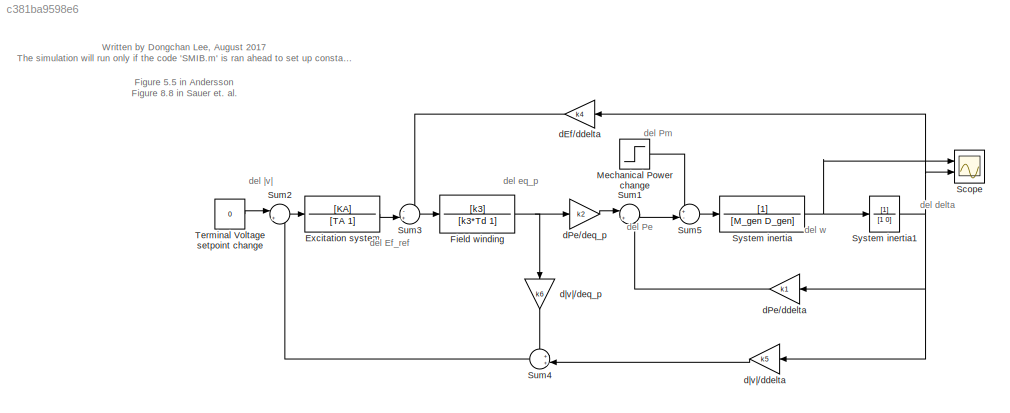
MODEL slx_c381ba9598e6
KIND model
CONFIG AbsTol = auto
CONFIG EnableMultiTasking = off
CONFIG FixedStep = auto
CONFIG MaxStep = auto
CONFIG MinStep = auto
CONFIG RelTol = 1e-3
CONFIG SampleTimeConstraint = Unconstrained
CONFIG Solver = VariableStepAuto
CONFIG SolverName = VariableStepAuto
CONFIG StartTime = 0.0
CONFIG StopTime = 100
BLOCK [TransferFcn] Excitation system
  Denominator = [TA 1]
  Numerator = [KA]
BLOCK [TransferFcn] Field winding
  Denominator = [k3*Td 1]
  Numerator = [k3]
BLOCK [Step] Mechanical Power change
  SampleTime = 0
BLOCK [Scope] Scope
  NumInputPorts = 2
  Ports = [2]
  ScopeSpecificationString = Simulink.scopes.TimeScopeBlockCfg('CurrentConfiguration', extmgr.ConfigurationSet(extmgr.Configuration('Core','General UI',true),extmgr.Configuration('Core','Source UI',true),extmgr.Configuration('Sources','WiredSimulink',true),extmgr.Configuration('Visuals','Time Domain',true,'SerializedDisplays',{struct('MinYLimReal','-0.13318','MaxYLimReal','0.42992','YLabelReal','','MinYLimMag','0.00000','MaxY...<+1352ch>
BLOCK [Sum] Sum1
  IconShape = round
  InputSameDT = off
  Inputs = |++
  OutDataTypeStr = Inherit: Inherit via internal rule
  Ports = [2, 1]
  SaturateOnIntegerOverflow = off
BLOCK [Sum] Sum2
  IconShape = round
  InputSameDT = off
  Inputs = |+-
  OutDataTypeStr = Inherit: Inherit via internal rule
  Ports = [2, 1]
  SaturateOnIntegerOverflow = off
BLOCK [Sum] Sum3
  IconShape = round
  InputSameDT = off
  Inputs = -+|
  OutDataTypeStr = Inherit: Inherit via internal rule
  Ports = [2, 1]
  SaturateOnIntegerOverflow = off
BLOCK [Sum] Sum4
  IconShape = round
  InputSameDT = off
  Inputs = ++|
  OutDataTypeStr = Inherit: Inherit via internal rule
  Ports = [2, 1]
  SaturateOnIntegerOverflow = off
BLOCK [Sum] Sum5
  IconShape = round
  InputSameDT = off
  Inputs = +-|
  OutDataTypeStr = Inherit: Inherit via internal rule
  Ports = [2, 1]
  SaturateOnIntegerOverflow = off
BLOCK [TransferFcn] System inertia
  Denominator = [M_gen D_gen]
BLOCK [TransferFcn] System inertia1
  Denominator = [1 0]
BLOCK [Constant] Terminal Voltage setpoint change
  Value = 0
BLOCK [Gain] dEf//ddelta
  Gain = k4
  OutDataTypeStr = Inherit: Inherit via internal rule
  ParamDataTypeStr = Inherit: Inherit via internal rule
  SaturateOnIntegerOverflow = off
BLOCK [Gain] dPe//ddelta
  Gain = k1
  OutDataTypeStr = Inherit: Inherit via internal rule
  ParamDataTypeStr = Inherit: Inherit via internal rule
  SaturateOnIntegerOverflow = off
BLOCK [Gain] dPe//deq_p
  Gain = k2
  OutDataTypeStr = Inherit: Inherit via internal rule
  ParamDataTypeStr = Inherit: Inherit via internal rule
  SaturateOnIntegerOverflow = off
BLOCK [Gain] d|v|//ddelta
  Gain = k5
  OutDataTypeStr = Inherit: Inherit via internal rule
  ParamDataTypeStr = Inherit: Inherit via internal rule
  SaturateOnIntegerOverflow = off
BLOCK [Gain] d|v|//deq_p
  Gain = k6
  OutDataTypeStr = Inherit: Inherit via internal rule
  ParamDataTypeStr = Inherit: Inherit via internal rule
  SaturateOnIntegerOverflow = off
ANNOTATION (root): Figure 5.5 in Andersson Figure 8.8 in Sauer et. al.
ANNOTATION (root): Written by Dongchan Lee, August 2017 The simulation will run only if the code 'SMIB.m' is ran ahead to set up constants k1-6
ANNOTATION (root): del Ef_ref
ANNOTATION (root): del Pe
ANNOTATION (root): del Pm
ANNOTATION (root): del delta
ANNOTATION (root): del eq_p
ANNOTATION (root): del w
ANNOTATION (root): del |v|
LINE Excitation system:1 -> Sum3:2
NET Field winding:1 -> dPe//deq_p:1, d|v|//deq_p:1
LINE Mechanical Power change:1 -> Sum5:1
LINE Sum1:1 -> Sum5:2
LINE Sum2:1 -> Excitation system:1
LINE Sum3:1 -> Field winding:1
LINE Sum4:1 -> Sum2:2
LINE Sum5:1 -> System inertia:1
NET System inertia1:1 -> Scope:2, dEf//ddelta:1, dPe//ddelta:1, d|v|//ddelta:1
NET System inertia:1 -> Scope:1, System inertia1:1
LINE Terminal Voltage setpoint change:1 -> Sum2:1
LINE dEf//ddelta:1 -> Sum3:1
LINE dPe//ddelta:1 -> Sum1:2
LINE dPe//deq_p:1 -> Sum1:1
LINE d|v|//ddelta:1 -> Sum4:2
LINE d|v|//deq_p:1 -> Sum4:1
note: NET lines group one-source signal fan-out (src -> all destinations, sorted); 1:1 wires keep LINE
